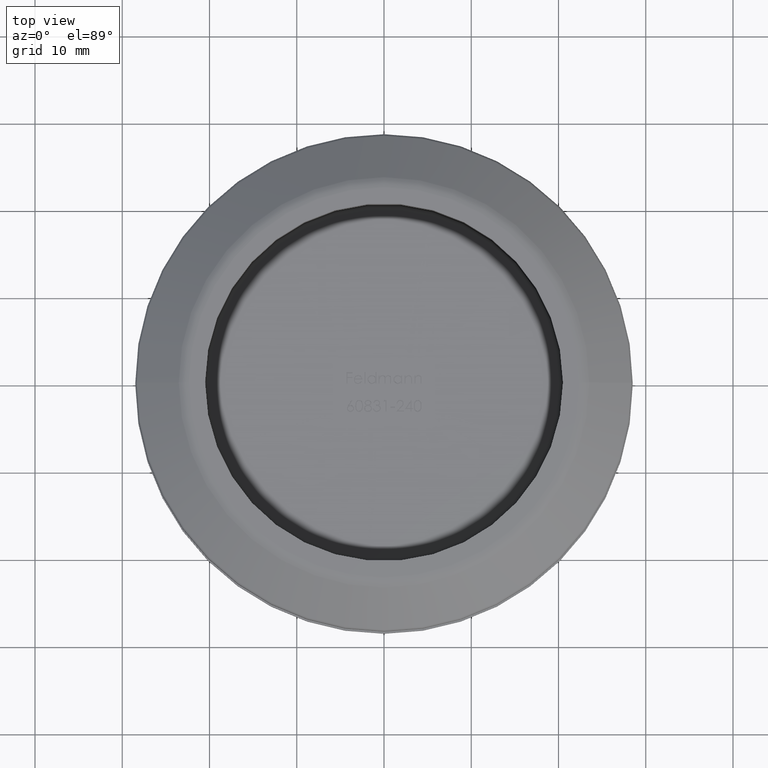
[diagram: clean part render]
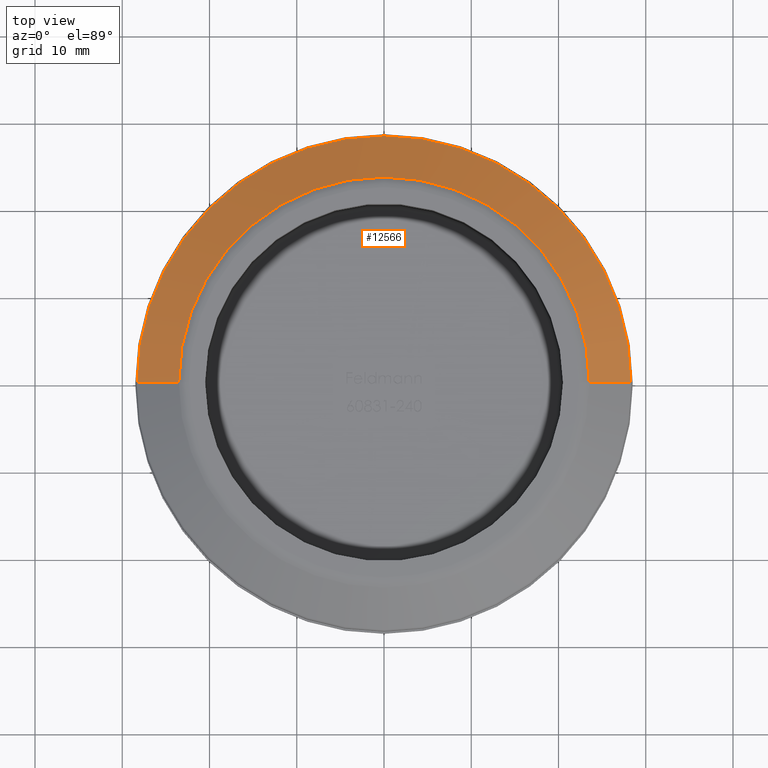
[diagram: same view with one face highlighted and labeled with its STEP entity id]
A machine part, top view. The second image highlights one B-rep face of the part: STEP entity #12566.
In plain terms, the highlighted conical surface has half-angle 53.973 deg.
Its self-contained STEP definition (entity closure, byte-faithful):
#183 = ORIENTED_EDGE ( 'NONE', *, *, #8200, .T. ) ;
#502 = DIRECTION ( 'NONE',  ( -0.8087360843031886600, 0.0000000000000000000, -0.5881716976750459600 ) ) ;
#636 = DIRECTION ( 'NONE',  ( 0.8087360843031886600, 9.904160569968640200E-017, -0.5881716976750459600 ) ) ;
#951 = CONICAL_SURFACE ( 'NONE', #13147, 28.50000000000000000, 0.9420000403794639400 ) ;
#1185 = CIRCLE ( 'NONE', #6014, 23.52597576816623400 ) ;
#3119 = EDGE_CURVE ( 'NONE', #7819, #12081, #4844, .T. ) ;
#3732 = CARTESIAN_POINT ( 'NONE',  ( -23.52597576816623400, 0.0000000000000000000, 2.617472168606378000 ) ) ;
#4009 = LINE ( 'NONE', #9571, #13860 ) ;
#4699 = DIRECTION ( 'NONE',  ( -0.0000000000000000000, -0.0000000000000000000, 1.000000000000000000 ) ) ;
#4844 = LINE ( 'NONE', #10765, #5759 ) ;
#5642 = DIRECTION ( 'NONE',  ( -1.000000000000000000, 0.0000000000000000000, 0.0000000000000000000 ) ) ;
#5745 = DIRECTION ( 'NONE',  ( 0.0000000000000000000, 0.0000000000000000000, -1.000000000000000000 ) ) ;
#5759 = VECTOR ( 'NONE', #636, 1000.000000000000000 ) ;
#6014 = AXIS2_PLACEMENT_3D ( 'NONE', #7212, #12999, #13943 ) ;
#7183 = ORIENTED_EDGE ( 'NONE', *, *, #7710, .T. ) ;
#7212 = CARTESIAN_POINT ( 'NONE',  ( 0.0000000000000000000, 0.0000000000000000000, 2.617472168606378000 ) ) ;
#7419 = VERTEX_POINT ( 'NONE', #10593 ) ;
#7472 = CIRCLE ( 'NONE', #11577, 28.29408584883752600 ) ;
#7520 = CARTESIAN_POINT ( 'NONE',  ( 28.29408584883752600, 3.465026166957929600E-015, -0.8502442537000158800 ) ) ;
#7710 = EDGE_CURVE ( 'NONE', #12081, #7419, #7472, .T. ) ;
#7819 = VERTEX_POINT ( 'NONE', #13674 ) ;
#8151 = FACE_OUTER_BOUND ( 'NONE', #14349, .T. ) ;
#8200 = EDGE_CURVE ( 'NONE', #9370, #7819, #1185, .T. ) ;
#9127 = DIRECTION ( 'NONE',  ( 1.000000000000000000, 0.0000000000000000000, 0.0000000000000000000 ) ) ;
#9370 = VERTEX_POINT ( 'NONE', #3732 ) ;
#9571 = CARTESIAN_POINT ( 'NONE',  ( -28.50000000000000000, 0.0000000000000000000, -0.9999999999999974500 ) ) ;
#10593 = CARTESIAN_POINT ( 'NONE',  ( -28.29408584883752600, 0.0000000000000000000, -0.8502442537000158800 ) ) ;
#10765 = CARTESIAN_POINT ( 'NONE',  ( 28.50000000000000000, 3.490243377569956500E-015, -0.9999999999999974500 ) ) ;
#11499 = CARTESIAN_POINT ( 'NONE',  ( 0.0000000000000000000, 0.0000000000000000000, -0.9999999999999974500 ) ) ;
#11575 = CARTESIAN_POINT ( 'NONE',  ( 0.0000000000000000000, 0.0000000000000000000, -0.8502442537000158800 ) ) ;
#11577 = AXIS2_PLACEMENT_3D ( 'NONE', #11575, #4699, #9127 ) ;
#12081 = VERTEX_POINT ( 'NONE', #7520 ) ;
#12566 = ADVANCED_FACE ( 'NONE', ( #8151 ), #951, .T. ) ;
#12999 = DIRECTION ( 'NONE',  ( 0.0000000000000000000, 0.0000000000000000000, -1.000000000000000000 ) ) ;
#13147 = AXIS2_PLACEMENT_3D ( 'NONE', #11499, #5745, #5642 ) ;
#13508 = ORIENTED_EDGE ( 'NONE', *, *, #14646, .F. ) ;
#13674 = CARTESIAN_POINT ( 'NONE',  ( 23.52597576816623400, 3.173063629544113400E-015, 2.617472168606378000 ) ) ;
#13860 = VECTOR ( 'NONE', #502, 1000.000000000000000 ) ;
#13943 = DIRECTION ( 'NONE',  ( 1.000000000000000000, 0.0000000000000000000, 0.0000000000000000000 ) ) ;
#13993 = ORIENTED_EDGE ( 'NONE', *, *, #3119, .T. ) ;
#14349 = EDGE_LOOP ( 'NONE', ( #183, #13993, #7183, #13508 ) ) ;
#14646 = EDGE_CURVE ( 'NONE', #9370, #7419, #4009, .T. ) ;